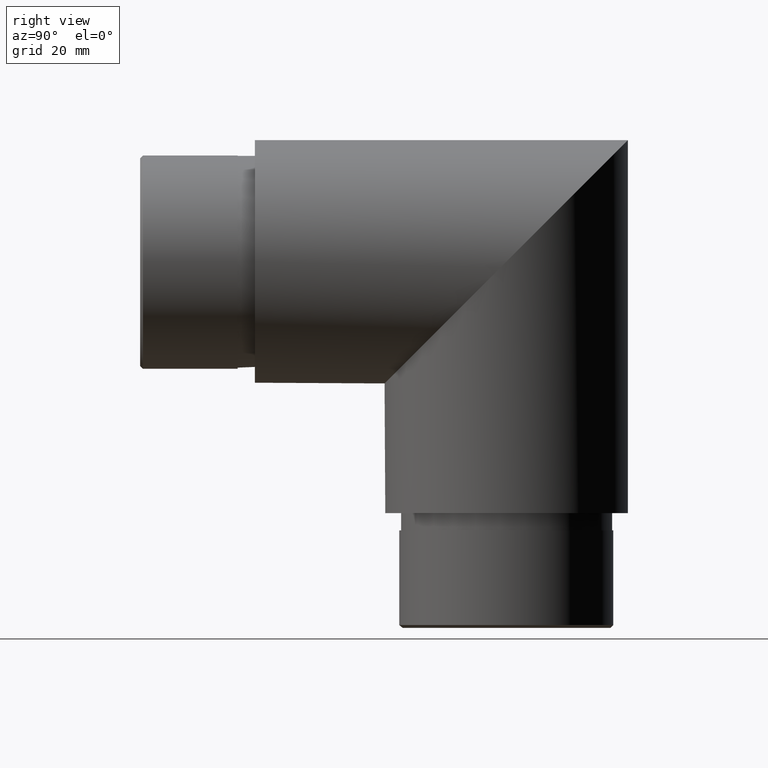
[diagram: clean part render]
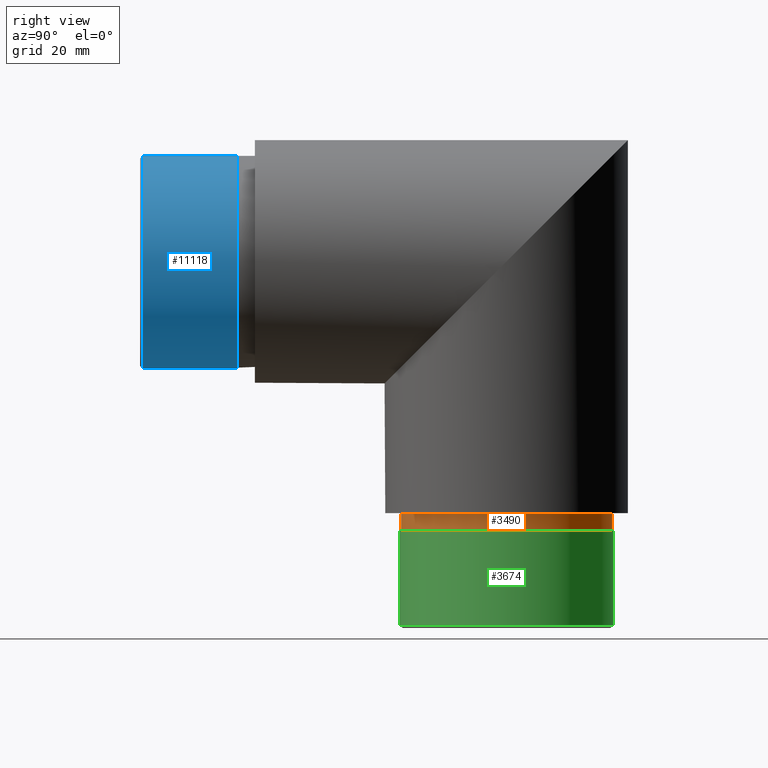
[diagram: same view with three faces highlighted in distinct colors, each labeled with its STEP entity id]
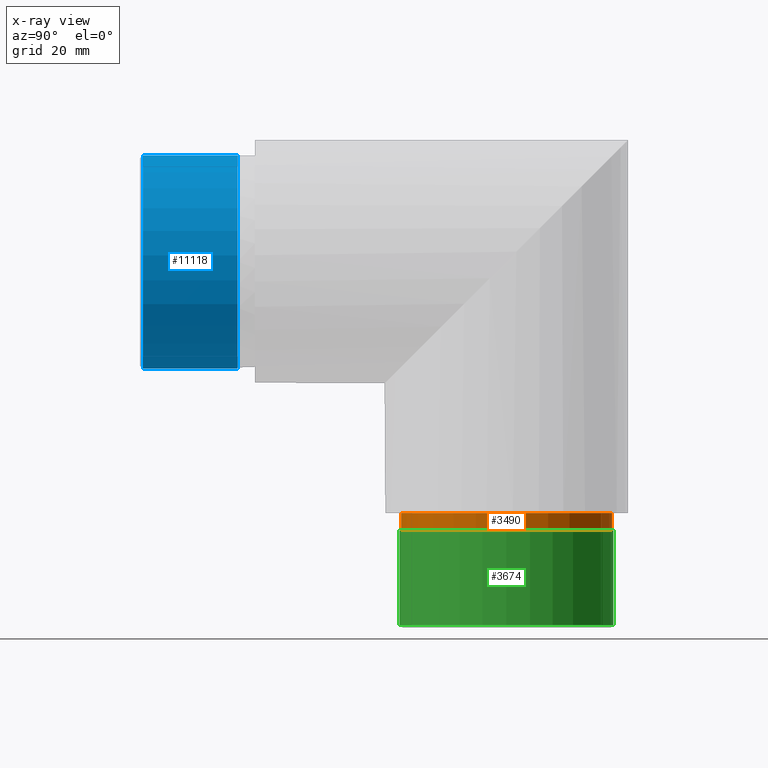
[diagram: x-ray of the same camera — body ghosted, the three highlighted faces saturated]
A machine part, right view with three faces highlighted in distinct colors.
The next image is the same camera in x-ray (body ghosted, the three faces saturated) — at least one of them is partly hidden behind the body in this view.
Their STEP definitions:

[orange] entity #3490 — the highlighted cylindrical surface (bore or boss wall) has radius 18.45 mm, axis along (-0, 0, 1).
#80 = DIRECTION ( 'NONE',  ( 0.0000000000000000000, -3.441691376337984500E-015, -1.000000000000000000 ) ) ;
#295 = FACE_OUTER_BOUND ( 'NONE', #7823, .T. ) ;
#725 = CARTESIAN_POINT ( 'NONE',  ( 0.0000000000000000000, 62.24999999999984400, -43.80000000000006100 ) ) ;
#825 = ORIENTED_EDGE ( 'NONE', *, *, #2747, .F. ) ;
#1946 = CARTESIAN_POINT ( 'NONE',  ( 0.0000000000000000000, 43.79999999999985500, -43.79999999999999700 ) ) ;
#2747 = EDGE_CURVE ( 'NONE', #11591, #11591, #7556, .T. ) ;
#3258 = AXIS2_PLACEMENT_3D ( 'NONE', #10772, #12783, #4803 ) ;
#3490 = ADVANCED_FACE ( 'NONE', ( #5115, #295 ), #9120, .T. ) ;
#3539 = EDGE_CURVE ( 'NONE', #10313, #10313, #7878, .T. ) ;
#4803 = DIRECTION ( 'NONE',  ( 0.0000000000000000000, -1.000000000000000000, 3.384826294588891900E-015 ) ) ;
#5016 = EDGE_LOOP ( 'NONE', ( #825 ) ) ;
#5115 = FACE_OUTER_BOUND ( 'NONE', #5016, .T. ) ;
#5967 = DIRECTION ( 'NONE',  ( 0.0000000000000000000, 1.000000000000000000, -3.384826294588891500E-015 ) ) ;
#6897 = DIRECTION ( 'NONE',  ( 0.0000000000000000000, 1.000000000000000000, -3.384826294588892700E-015 ) ) ;
#7087 = AXIS2_PLACEMENT_3D ( 'NONE', #8853, #11912, #5967 ) ;
#7556 = CIRCLE ( 'NONE', #7087, 18.45000000000000300 ) ;
#7665 = CARTESIAN_POINT ( 'NONE',  ( 0.0000000000000000000, 62.24999999999984400, -46.80000000000006100 ) ) ;
#7823 = EDGE_LOOP ( 'NONE', ( #11581 ) ) ;
#7878 = CIRCLE ( 'NONE', #10825, 18.44999999999999600 ) ;
#8853 = CARTESIAN_POINT ( 'NONE',  ( 0.0000000000000000000, 43.79999999999984800, -46.80000000000000400 ) ) ;
#9120 = CYLINDRICAL_SURFACE ( 'NONE', #3258, 18.44999999999999900 ) ;
#10313 = VERTEX_POINT ( 'NONE', #725 ) ;
#10772 = CARTESIAN_POINT ( 'NONE',  ( 0.0000000000000000000, 43.79999999999984800, -46.80000000000000400 ) ) ;
#10825 = AXIS2_PLACEMENT_3D ( 'NONE', #1946, #80, #6897 ) ;
#11581 = ORIENTED_EDGE ( 'NONE', *, *, #3539, .T. ) ;
#11591 = VERTEX_POINT ( 'NONE', #7665 ) ;
#11912 = DIRECTION ( 'NONE',  ( 0.0000000000000000000, -3.441691376337984500E-015, -1.000000000000000000 ) ) ;
#12783 = DIRECTION ( 'NONE',  ( -0.0000000000000000000, 3.441691376337984500E-015, 1.000000000000000000 ) ) ;

[blue] entity #11118 — the highlighted cylindrical surface (bore or boss wall) has radius 18.65 mm, axis along (-0, 1, 0).
#538 = EDGE_CURVE ( 'NONE', #12515, #12515, #11864, .T. ) ;
#576 = DIRECTION ( 'NONE',  ( 0.0000000000000000000, -1.000000000000000000, 0.0000000000000000000 ) ) ;
#1598 = CARTESIAN_POINT ( 'NONE',  ( 0.0000000000000000000, -3.000000000000000000, -18.64999999999999900 ) ) ;
#2449 = AXIS2_PLACEMENT_3D ( 'NONE', #5453, #576, #8370 ) ;
#2564 = VERTEX_POINT ( 'NONE', #5602 ) ;
#2858 = DIRECTION ( 'NONE',  ( -0.0000000000000000000, 1.000000000000000000, 0.0000000000000000000 ) ) ;
#3151 = AXIS2_PLACEMENT_3D ( 'NONE', #12600, #2858, #8090 ) ;
#3854 = DIRECTION ( 'NONE',  ( 0.0000000000000000000, 1.000000000000000000, 0.0000000000000000000 ) ) ;
#4643 = CIRCLE ( 'NONE', #12381, 18.64999999999999900 ) ;
#4799 = EDGE_LOOP ( 'NONE', ( #7965 ) ) ;
#4883 = CARTESIAN_POINT ( 'NONE',  ( 0.0000000000000000000, -19.50000000000001400, 0.0000000000000000000 ) ) ;
#5261 = CYLINDRICAL_SURFACE ( 'NONE', #3151, 18.64999999999999900 ) ;
#5453 = CARTESIAN_POINT ( 'NONE',  ( 0.0000000000000000000, -3.000000000000000000, 0.0000000000000000000 ) ) ;
#5602 = CARTESIAN_POINT ( 'NONE',  ( 0.0000000000000000000, -19.50000000000001400, -18.64999999999999900 ) ) ;
#5792 = EDGE_CURVE ( 'NONE', #2564, #2564, #4643, .T. ) ;
#7156 = ORIENTED_EDGE ( 'NONE', *, *, #538, .T. ) ;
#7953 = EDGE_LOOP ( 'NONE', ( #7156 ) ) ;
#7965 = ORIENTED_EDGE ( 'NONE', *, *, #5792, .T. ) ;
#8026 = FACE_OUTER_BOUND ( 'NONE', #7953, .T. ) ;
#8090 = DIRECTION ( 'NONE',  ( 0.0000000000000000000, 0.0000000000000000000, 1.000000000000000000 ) ) ;
#8370 = DIRECTION ( 'NONE',  ( 0.0000000000000000000, 0.0000000000000000000, -1.000000000000000000 ) ) ;
#8958 = DIRECTION ( 'NONE',  ( 0.0000000000000000000, 0.0000000000000000000, -1.000000000000000000 ) ) ;
#11118 = ADVANCED_FACE ( 'NONE', ( #11488, #8026 ), #5261, .T. ) ;
#11488 = FACE_OUTER_BOUND ( 'NONE', #4799, .T. ) ;
#11864 = CIRCLE ( 'NONE', #2449, 18.64999999999999900 ) ;
#12381 = AXIS2_PLACEMENT_3D ( 'NONE', #4883, #3854, #8958 ) ;
#12515 = VERTEX_POINT ( 'NONE', #1598 ) ;
#12600 = CARTESIAN_POINT ( 'NONE',  ( 0.0000000000000000000, -20.00000000000000000, 0.0000000000000000000 ) ) ;

[green] entity #3674 — the highlighted cylindrical surface (bore or boss wall) has radius 18.65 mm, axis along (-0, 0, 1).
#4 = EDGE_LOOP ( 'NONE', ( #9909 ) ) ;
#2152 = EDGE_CURVE ( 'NONE', #12820, #12820, #3880, .T. ) ;
#2394 = CARTESIAN_POINT ( 'NONE',  ( 0.0000000000000000000, 43.79999999999979100, -63.79999999999999700 ) ) ;
#2638 = CIRCLE ( 'NONE', #7312, 18.64999999999999900 ) ;
#2811 = DIRECTION ( 'NONE',  ( 0.0000000000000000000, 1.000000000000000000, -3.348527889284989900E-015 ) ) ;
#3384 = DIRECTION ( 'NONE',  ( 0.0000000000000000000, -1.000000000000000000, 3.720586543649989000E-015 ) ) ;
#3645 = DIRECTION ( 'NONE',  ( -1.000000000000000000, 0.0000000000000000000, 0.0000000000000000000 ) ) ;
#3674 = ADVANCED_FACE ( 'NONE', ( #7272, #12102 ), #5266, .T. ) ;
#3880 = CIRCLE ( 'NONE', #6695, 18.64999999999999900 ) ;
#5266 = CYLINDRICAL_SURFACE ( 'NONE', #5592, 18.64999999999999900 ) ;
#5592 = AXIS2_PLACEMENT_3D ( 'NONE', #2394, #12486, #3384 ) ;
#6082 = ORIENTED_EDGE ( 'NONE', *, *, #7048, .T. ) ;
#6695 = AXIS2_PLACEMENT_3D ( 'NONE', #12522, #12609, #3645 ) ;
#7048 = EDGE_CURVE ( 'NONE', #12207, #12207, #2638, .T. ) ;
#7272 = FACE_OUTER_BOUND ( 'NONE', #4, .T. ) ;
#7312 = AXIS2_PLACEMENT_3D ( 'NONE', #9686, #10840, #2811 ) ;
#7535 = EDGE_LOOP ( 'NONE', ( #6082 ) ) ;
#7574 = CARTESIAN_POINT ( 'NONE',  ( 0.0000000000000000000, 62.44999999999984700, -46.80000000000005400 ) ) ;
#8517 = CARTESIAN_POINT ( 'NONE',  ( -18.64999999999999900, 43.79999999999979100, -63.30000000000004000 ) ) ;
#9686 = CARTESIAN_POINT ( 'NONE',  ( 0.0000000000000000000, 43.79999999999984800, -46.79999999999999700 ) ) ;
#9909 = ORIENTED_EDGE ( 'NONE', *, *, #2152, .T. ) ;
#10840 = DIRECTION ( 'NONE',  ( 0.0000000000000000000, -3.386180225106727400E-015, -1.000000000000000000 ) ) ;
#12102 = FACE_OUTER_BOUND ( 'NONE', #7535, .T. ) ;
#12207 = VERTEX_POINT ( 'NONE', #7574 ) ;
#12486 = DIRECTION ( 'NONE',  ( -0.0000000000000000000, 3.386180225106727800E-015, 1.000000000000000000 ) ) ;
#12522 = CARTESIAN_POINT ( 'NONE',  ( 0.0000000000000000000, 43.79999999999979100, -63.30000000000004000 ) ) ;
#12609 = DIRECTION ( 'NONE',  ( 0.0000000000000000000, 0.0000000000000000000, 1.000000000000000000 ) ) ;
#12820 = VERTEX_POINT ( 'NONE', #8517 ) ;